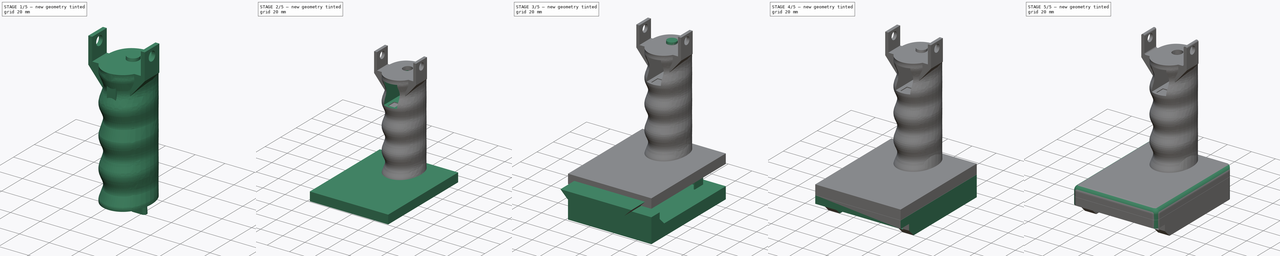
[diagram: build sequence overview — one tinted view per stage of 5, left to right]
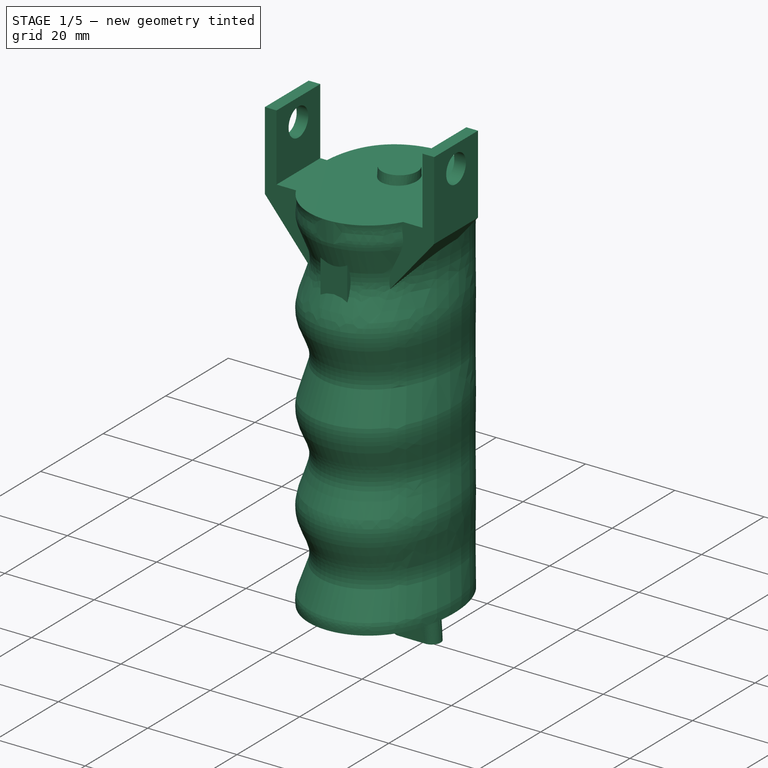
[diagram: stage 1 of 5 — iso view after this stage's code; geometry added in this stage tinted green]
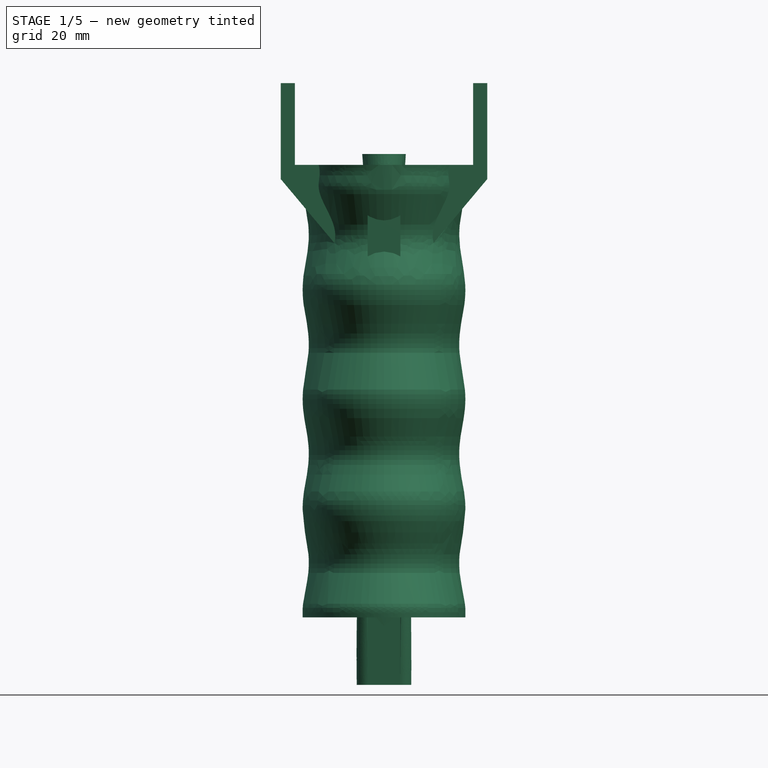
[diagram: stage 1 of 5 — front view after this stage's code; geometry added in this stage tinted green]
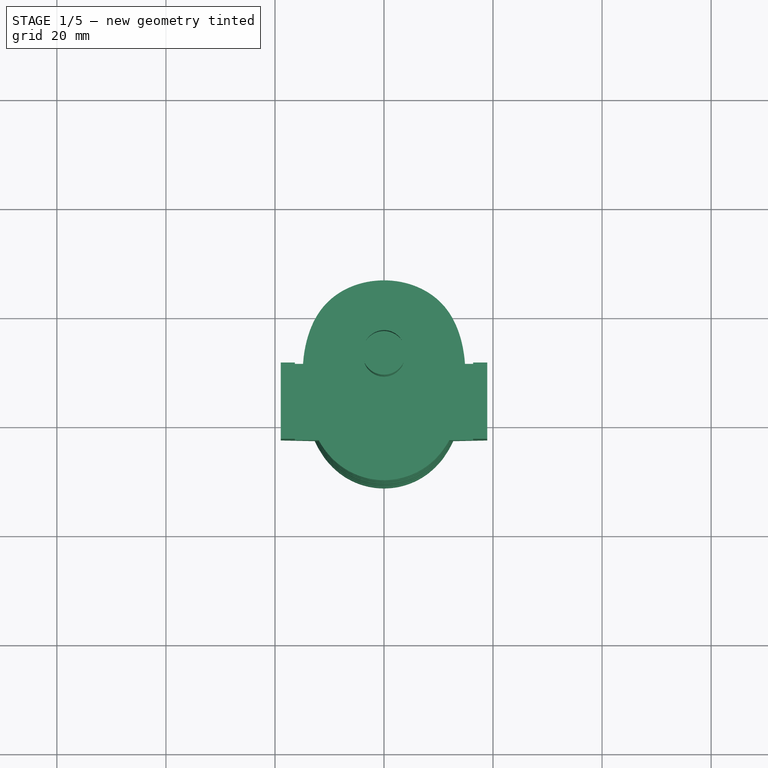
[diagram: stage 1 of 5 — top view after this stage's code; geometry added in this stage tinted green]
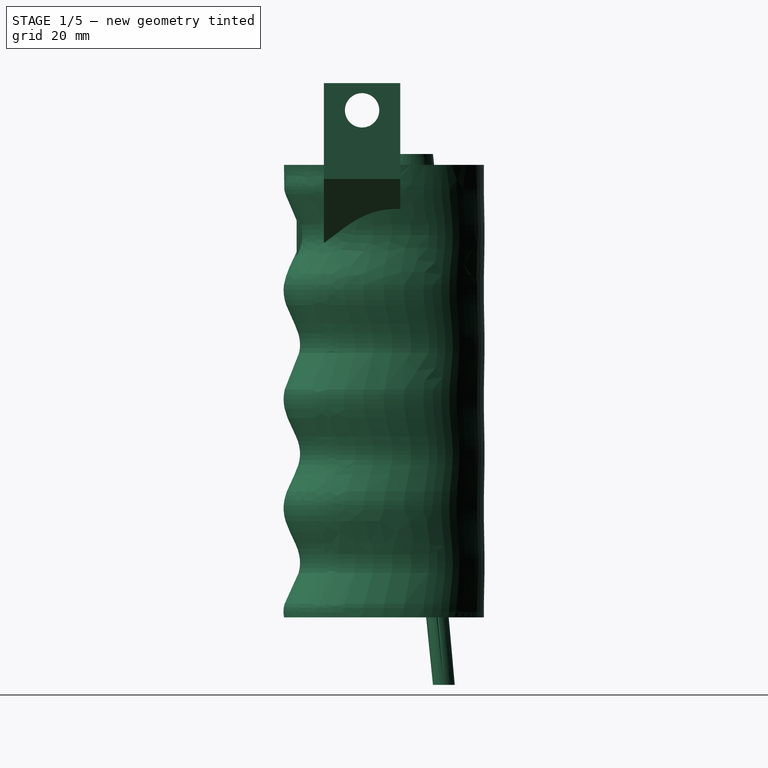
[diagram: stage 1 of 5 — right view after this stage's code; geometry added in this stage tinted green]
FCSTD DOCUMENT  (FreeCAD 0.20R29603 (Git))
Label: batteryLamp
License: All rights reserved
LicenseURL: http://en.wikipedia.org/wiki/All_rights_reserved
objects: Sketcher::SketchObject×27, Part::Cut×8, PartDesign::Body×7, Part::Box×6, PartDesign::Pad×5, Part::MultiFuse×4, Part::Fillet×4, PartDesign::AdditiveLoft×3, Part::Chamfer×1, Part::Fuse×1, Part::Cylinder×1
note: 75 computed .brp shape members not serialized (recipe doc carries the construction recipe); baked Part::Feature solids carry a one-line shape summary decoded from their .brp

FEATURE [PartDesign::AdditiveLoft] AdditiveLoft002
  Closed = false
  Placement = pos=(0,0,12.6) rot=(0,0,1;0rad)
  Profile = -> Sketch010
  Ruled = false
  Sections = -> [Sketch032,Sketch033,Sketch012]
FEATURE [Sketcher::SketchObject] Sketch036
  FullyConstrained = true
  MapMode = 5
  Placement = pos=(0,0,0) rot=(1,0,0;1.5708rad)
  Support = -> [XZ_Plane009]
  sketch-geometry (10):
    g0: LineSegment StartX=16.35 StartY=123 StartZ=0 EndX=18.95 EndY=123 EndZ=0
    g1: LineSegment StartX=18.95 StartY=123 StartZ=0 EndX=18.95 EndY=105.4 EndZ=0
    g2: LineSegment StartX=-18.95 StartY=105.4 StartZ=0 EndX=-18.95 EndY=123 EndZ=0
    g3: LineSegment StartX=-18.95 StartY=123 StartZ=0 EndX=-16.35 EndY=123 EndZ=0
    g4: LineSegment StartX=-16.35 StartY=123 StartZ=0 EndX=-16.35 EndY=108 EndZ=0
    g5: LineSegment StartX=-16.35 StartY=108 StartZ=0 EndX=0 EndY=108 EndZ=0
    g6: LineSegment StartX=0 StartY=108 StartZ=0 EndX=16.35 EndY=108 EndZ=0
    g7: LineSegment StartX=16.35 StartY=108 StartZ=0 EndX=16.35 EndY=123 EndZ=0
    g8: LineSegment StartX=-18.95 StartY=105.4 StartZ=0 EndX=0 EndY=82.8163 EndZ=0
    g9: LineSegment StartX=0 StartY=82.8163 StartZ=0 EndX=18.95 EndY=105.4 EndZ=0
  constraints (29):
    c: Coincident(g0,g1)
    c: Vertical(g1)
    c: Vertical(g2)
    c: Coincident(g2,g3)
    c: Horizontal(g3)
    c: Coincident(g3,g4)
    c: Coincident(g4,g5)
    c: PointOnObject(g5,g-2)
    c: Coincident(g5,g6)
    c: Horizontal(g6)
    c: Coincident(g6,g7)
    c: Coincident(g7,g0)
    c: Vertical(g7)
    c: Vertical(g4)
    c: Horizontal(g0)
    c: Symmetric(g4,g6,g5)
    c: DistanceX(g5,g5) = 16.35
    c: Equal(g3,g0)
    c: DistanceX(g3,g3) = 2.6
    c: DistanceY(g4,g4) = 15
    c: Equal(g4,g7)
    c: DistanceY(g-1,g5) = 108
    c: Coincident(g2,g8)
    c: Coincident(g8,g9)
    c: Coincident(g9,g1)
    c: Horizontal(g2,g1)
    c: Angle(g8,g2) = 2.44346
    c: Angle(g1,g9) = 2.44346
    c: DistanceY(g2,g4) = 2.6
FEATURE [PartDesign::Pad] Pad006
  Direction = (0,-1,-2e-16)
  Length = 14
  Length2 = 10
  Placement = pos=(0,0,0) rot=(1,0,0;1.5708rad)
  Profile = -> Sketch036
  ReferenceAxis = -> Sketch036 [N_Axis]
  Type = 0
FEATURE [PartDesign::Body] Body009
  Group = -> [Sketch036,Pad006]
  Origin = -> Origin009
  Placement = pos=(0,10,0) rot=(0,0,1;0rad)
  Tip = -> Pad006
FEATURE [Part::Cylinder] Cylinder001
  Angle = 360
  AttacherType = Attacher::AttachEngine3D
  FirstAngle = 0
  Height = 40
  Placement = pos=(-20,3,118) rot=(0,1,0;1.5708rad)
  Radius = 3.15
  SecondAngle = 0
FEATURE [Part::Cut] Cut007
  Base = -> Body009
  Tool = -> Cylinder001
FEATURE [Sketcher::SketchObject] Sketch015
  FullyConstrained = true
  Placement = pos=(0,0,37) rot=(0,0,1;0rad)
  sketch-geometry (10):
    g0-g3: Circle x4 (B-spline internal-alignment scaffolding for g4; pole/knot coordinates omitted)
    g4: BSplineCurve PolesCount=4 KnotsCount=5 Degree=3 IsPeriodic=1
    g5-g9: GeomPoint x5 (B-spline internal-alignment scaffolding for g4; pole/knot coordinates omitted)
  constraints (14):
    c: Weight(g0) = 1
    c: Equal(g0,g1)
    c: Equal(g0,g2)
    c: Equal(g0,g3)
    c: InternalAlignment(g0-g3 -> g4) x4
    c: InternalAlignment(g5-g9 -> g4) x5
    c: Horizontal(g0,g1)
    c: Horizontal(g3,g2)
    c: DistanceY(g-1,g0) = 15
    c: DistanceY(g3,g-1) = 25
    c: DistanceX(g3,g2) = 30
    c: DistanceX(g0,g1) = 35
    c: DistanceX(g-1,g1) = 17.5
    c: DistanceX(g-1,g2) = 15
FEATURE [Sketcher::SketchObject] Sketch017
  FullyConstrained = true
  Placement = pos=(0,0,57) rot=(0,0,1;0rad)
  sketch-geometry (10):
    g0-g3: Circle x4 (B-spline internal-alignment scaffolding for g4; pole/knot coordinates omitted)
    g4: BSplineCurve PolesCount=4 KnotsCount=5 Degree=3 IsPeriodic=1
    g5-g9: GeomPoint x5 (B-spline internal-alignment scaffolding for g4; pole/knot coordinates omitted)
  constraints (14):
    c: Weight(g0) = 1
    c: Equal(g0,g1)
    c: Equal(g0,g2)
    c: Equal(g0,g3)
    c: InternalAlignment(g0-g3 -> g4) x4
    c: InternalAlignment(g5-g9 -> g4) x5
    c: Horizontal(g0,g1)
    c: Horizontal(g3,g2)
    c: DistanceY(g-1,g0) = 15
    c: DistanceY(g3,g-1) = 25
    c: DistanceX(g3,g2) = 30
    c: DistanceX(g0,g1) = 35
    c: DistanceX(g-1,g1) = 17.5
    c: DistanceX(g-1,g2) = 15
FEATURE [Sketcher::SketchObject] Sketch018
  FullyConstrained = true
  Placement = pos=(0,0,77) rot=(0,0,1;0rad)
  sketch-geometry (10):
    g0-g3: Circle x4 (B-spline internal-alignment scaffolding for g4; pole/knot coordinates omitted)
    g4: BSplineCurve PolesCount=4 KnotsCount=5 Degree=3 IsPeriodic=1
    g5-g9: GeomPoint x5 (B-spline internal-alignment scaffolding for g4; pole/knot coordinates omitted)
  constraints (14):
    c: Weight(g0) = 1
    c: Equal(g0,g1)
    c: Equal(g0,g2)
    c: Equal(g0,g3)
    c: InternalAlignment(g0-g3 -> g4) x4
    c: InternalAlignment(g5-g9 -> g4) x5
    c: Horizontal(g0,g1)
    c: Horizontal(g3,g2)
    c: DistanceY(g-1,g0) = 15
    c: DistanceY(g3,g-1) = 25
    c: DistanceX(g3,g2) = 30
    c: DistanceX(g0,g1) = 35
    c: DistanceX(g-1,g1) = 17.5
    c: DistanceX(g-1,g2) = 15
FEATURE [Sketcher::SketchObject] Sketch019
  FullyConstrained = true
  Placement = pos=(0,0,97) rot=(0,0,1;0rad)
  sketch-geometry (10):
    g0-g3: Circle x4 (B-spline internal-alignment scaffolding for g4; pole/knot coordinates omitted)
    g4: BSplineCurve PolesCount=4 KnotsCount=5 Degree=3 IsPeriodic=1
    g5-g9: GeomPoint x5 (B-spline internal-alignment scaffolding for g4; pole/knot coordinates omitted)
  constraints (14):
    c: Weight(g0) = 1
    c: Equal(g0,g1)
    c: Equal(g0,g2)
    c: Equal(g0,g3)
    c: InternalAlignment(g0-g3 -> g4) x4
    c: InternalAlignment(g5-g9 -> g4) x5
    c: Horizontal(g0,g1)
    c: Horizontal(g3,g2)
    c: DistanceY(g-1,g0) = 15
    c: DistanceY(g3,g-1) = 25
    c: DistanceX(g3,g2) = 30
    c: DistanceX(g0,g1) = 35
    c: DistanceX(g-1,g1) = 17.5
    c: DistanceX(g-1,g2) = 15
FEATURE [Sketcher::SketchObject] Sketch020  label="small"
  FullyConstrained = true
  Placement = pos=(0,0,47) rot=(0,0,1;0rad)
  sketch-geometry (10):
    g0-g3: Circle x4 (B-spline internal-alignment scaffolding for g4; pole/knot coordinates omitted)
    g4: BSplineCurve PolesCount=4 KnotsCount=5 Degree=3 IsPeriodic=1
    g5-g9: GeomPoint x5 (B-spline internal-alignment scaffolding for g4; pole/knot coordinates omitted)
  constraints (14):
    c: Weight(g0) = 1
    c: Equal(g0,g1)
    c: Equal(g0,g2)
    c: Equal(g0,g3)
    c: InternalAlignment(g0-g3 -> g4) x4
    c: InternalAlignment(g5-g9 -> g4) x5
    c: Horizontal(g0,g1)
    c: Horizontal(g3,g2)
    c: DistanceY(g-1,g0) = 15
    c: DistanceY(g3,g-1) = 22
    c: DistanceX(g3,g2) = 25
    c: DistanceX(g0,g1) = 35
    c: DistanceX(g-1,g1) = 17.5
    c: DistanceX(g-1,g2) = 12.5
FEATURE [Sketcher::SketchObject] Sketch021  label="small001"
  FullyConstrained = true
  Placement = pos=(0,0,67) rot=(0,0,1;0rad)
  sketch-geometry (10):
    g0-g3: Circle x4 (B-spline internal-alignment scaffolding for g4; pole/knot coordinates omitted)
    g4: BSplineCurve PolesCount=4 KnotsCount=5 Degree=3 IsPeriodic=1
    g5-g9: GeomPoint x5 (B-spline internal-alignment scaffolding for g4; pole/knot coordinates omitted)
  constraints (14):
    c: Weight(g0) = 1
    c: Equal(g0,g1)
    c: Equal(g0,g2)
    c: Equal(g0,g3)
    c: InternalAlignment(g0-g3 -> g4) x4
    c: InternalAlignment(g5-g9 -> g4) x5
    c: Horizontal(g0,g1)
    c: Horizontal(g3,g2)
    c: DistanceY(g-1,g0) = 15
    c: DistanceY(g3,g-1) = 22
    c: DistanceX(g3,g2) = 25
    c: DistanceX(g0,g1) = 35
    c: DistanceX(g-1,g1) = 17.5
    c: DistanceX(g-1,g2) = 12.5
FEATURE [Sketcher::SketchObject] Sketch022  label="small002"
  FullyConstrained = true
  Placement = pos=(0,0,87) rot=(0,0,1;0rad)
  sketch-geometry (10):
    g0-g3: Circle x4 (B-spline internal-alignment scaffolding for g4; pole/knot coordinates omitted)
    g4: BSplineCurve PolesCount=4 KnotsCount=5 Degree=3 IsPeriodic=1
    g5-g9: GeomPoint x5 (B-spline internal-alignment scaffolding for g4; pole/knot coordinates omitted)
  constraints (14):
    c: Weight(g0) = 1
    c: Equal(g0,g1)
    c: Equal(g0,g2)
    c: Equal(g0,g3)
    c: InternalAlignment(g0-g3 -> g4) x4
    c: InternalAlignment(g5-g9 -> g4) x5
    c: Horizontal(g0,g1)
    c: Horizontal(g3,g2)
    c: DistanceY(g-1,g0) = 15
    c: DistanceY(g3,g-1) = 22
    c: DistanceX(g3,g2) = 25
    c: DistanceX(g0,g1) = 35
    c: DistanceX(g-1,g1) = 17.5
    c: DistanceX(g-1,g2) = 12.5
FEATURE [Sketcher::SketchObject] Sketch023  label="small003"
  FullyConstrained = true
  Placement = pos=(0,0,27) rot=(0,0,1;0rad)
  sketch-geometry (10):
    g0-g3: Circle x4 (B-spline internal-alignment scaffolding for g4; pole/knot coordinates omitted)
    g4: BSplineCurve PolesCount=4 KnotsCount=5 Degree=3 IsPeriodic=1
    g5-g9: GeomPoint x5 (B-spline internal-alignment scaffolding for g4; pole/knot coordinates omitted)
  constraints (14):
    c: Weight(g0) = 1
    c: Equal(g0,g1)
    c: Equal(g0,g2)
    c: Equal(g0,g3)
    c: InternalAlignment(g0-g3 -> g4) x4
    c: InternalAlignment(g5-g9 -> g4) x5
    c: Horizontal(g0,g1)
    c: Horizontal(g3,g2)
    c: DistanceY(g-1,g0) = 15
    c: DistanceY(g3,g-1) = 22
    c: DistanceX(g3,g2) = 25
    c: DistanceX(g0,g1) = 35
    c: DistanceX(g-1,g1) = 17.5
    c: DistanceX(g-1,g2) = 12.5
FEATURE [Sketcher::SketchObject] Sketch024
  FullyConstrained = true
  Placement = pos=(0,0,39.03) rot=(0,0,1;0rad)
  sketch-geometry (10):
    g0-g3: Circle x4 (B-spline internal-alignment scaffolding for g4; pole/knot coordinates omitted)
    g4: BSplineCurve PolesCount=4 KnotsCount=5 Degree=3 IsPeriodic=1
    g5-g9: GeomPoint x5 (B-spline internal-alignment scaffolding for g4; pole/knot coordinates omitted)
  constraints (14):
    c: Weight(g0) = 1
    c: Equal(g0,g1)
    c: Equal(g0,g2)
    c: Equal(g0,g3)
    c: InternalAlignment(g0-g3 -> g4) x4
    c: InternalAlignment(g5-g9 -> g4) x5
    c: Horizontal(g0,g1)
    c: Horizontal(g3,g2)
    c: DistanceY(g-1,g0) = 15
    c: DistanceY(g3,g-1) = 25
    c: DistanceX(g3,g2) = 30
    c: DistanceX(g0,g1) = 35
    c: DistanceX(g-1,g1) = 17.5
    c: DistanceX(g-1,g2) = 15
FEATURE [Sketcher::SketchObject] Sketch025
  FullyConstrained = true
  Placement = pos=(0,0,59.03) rot=(0,0,1;0rad)
  sketch-geometry (10):
    g0-g3: Circle x4 (B-spline internal-alignment scaffolding for g4; pole/knot coordinates omitted)
    g4: BSplineCurve PolesCount=4 KnotsCount=5 Degree=3 IsPeriodic=1
    g5-g9: GeomPoint x5 (B-spline internal-alignment scaffolding for g4; pole/knot coordinates omitted)
  constraints (14):
    c: Weight(g0) = 1
    c: Equal(g0,g1)
    c: Equal(g0,g2)
    c: Equal(g0,g3)
    c: InternalAlignment(g0-g3 -> g4) x4
    c: InternalAlignment(g5-g9 -> g4) x5
    c: Horizontal(g0,g1)
    c: Horizontal(g3,g2)
    c: DistanceY(g-1,g0) = 15
    c: DistanceY(g3,g-1) = 25
    c: DistanceX(g3,g2) = 30
    c: DistanceX(g0,g1) = 35
    c: DistanceX(g-1,g1) = 17.5
    c: DistanceX(g-1,g2) = 15
FEATURE [Sketcher::SketchObject] Sketch026
  FullyConstrained = true
  Placement = pos=(0,0,79.03) rot=(0,0,1;0rad)
  sketch-geometry (10):
    g0-g3: Circle x4 (B-spline internal-alignment scaffolding for g4; pole/knot coordinates omitted)
    g4: BSplineCurve PolesCount=4 KnotsCount=5 Degree=3 IsPeriodic=1
    g5-g9: GeomPoint x5 (B-spline internal-alignment scaffolding for g4; pole/knot coordinates omitted)
  constraints (14):
    c: Weight(g0) = 1
    c: Equal(g0,g1)
    c: Equal(g0,g2)
    c: Equal(g0,g3)
    c: InternalAlignment(g0-g3 -> g4) x4
    c: InternalAlignment(g5-g9 -> g4) x5
    c: Horizontal(g0,g1)
    c: Horizontal(g3,g2)
    c: DistanceY(g-1,g0) = 15
    c: DistanceY(g3,g-1) = 25
    c: DistanceX(g3,g2) = 30
    c: DistanceX(g0,g1) = 35
    c: DistanceX(g-1,g1) = 17.5
    c: DistanceX(g-1,g2) = 15
FEATURE [Sketcher::SketchObject] Sketch027
  FullyConstrained = true
  Placement = pos=(0,0,101) rot=(0,0,1;0rad)
  sketch-geometry (10):
    g0-g3: Circle x4 (B-spline internal-alignment scaffolding for g4; pole/knot coordinates omitted)
    g4: BSplineCurve PolesCount=4 KnotsCount=5 Degree=3 IsPeriodic=1
    g5-g9: GeomPoint x5 (B-spline internal-alignment scaffolding for g4; pole/knot coordinates omitted)
  constraints (14):
    c: Weight(g0) = 1
    c: Equal(g0,g1)
    c: Equal(g0,g2)
    c: Equal(g0,g3)
    c: InternalAlignment(g0-g3 -> g4) x4
    c: InternalAlignment(g5-g9 -> g4) x5
    c: Horizontal(g0,g1)
    c: Horizontal(g3,g2)
    c: DistanceY(g-1,g0) = 15
    c: DistanceY(g3,g-1) = 25
    c: DistanceX(g3,g2) = 30
    c: DistanceX(g0,g1) = 35
    c: DistanceX(g-1,g1) = 17.5
    c: DistanceX(g-1,g2) = 15
FEATURE [Sketcher::SketchObject] Sketch028  label="small004"
  FullyConstrained = true
  Placement = pos=(0,0,49.03) rot=(0,0,1;0rad)
  sketch-geometry (10):
    g0-g3: Circle x4 (B-spline internal-alignment scaffolding for g4; pole/knot coordinates omitted)
    g4: BSplineCurve PolesCount=4 KnotsCount=5 Degree=3 IsPeriodic=1
    g5-g9: GeomPoint x5 (B-spline internal-alignment scaffolding for g4; pole/knot coordinates omitted)
  constraints (14):
    c: Weight(g0) = 1
    c: Equal(g0,g1)
    c: Equal(g0,g2)
    c: Equal(g0,g3)
    c: InternalAlignment(g0-g3 -> g4) x4
    c: InternalAlignment(g5-g9 -> g4) x5
    c: Horizontal(g0,g1)
    c: Horizontal(g3,g2)
    c: DistanceY(g-1,g0) = 15
    c: DistanceY(g3,g-1) = 22
    c: DistanceX(g3,g2) = 25
    c: DistanceX(g0,g1) = 35
    c: DistanceX(g-1,g1) = 17.5
    c: DistanceX(g-1,g2) = 12.5
FEATURE [Sketcher::SketchObject] Sketch029  label="small005"
  FullyConstrained = true
  Placement = pos=(0,0,69.03) rot=(0,0,1;0rad)
  sketch-geometry (10):
    g0-g3: Circle x4 (B-spline internal-alignment scaffolding for g4; pole/knot coordinates omitted)
    g4: BSplineCurve PolesCount=4 KnotsCount=5 Degree=3 IsPeriodic=1
    g5-g9: GeomPoint x5 (B-spline internal-alignment scaffolding for g4; pole/knot coordinates omitted)
  constraints (14):
    c: Weight(g0) = 1
    c: Equal(g0,g1)
    c: Equal(g0,g2)
    c: Equal(g0,g3)
    c: InternalAlignment(g0-g3 -> g4) x4
    c: InternalAlignment(g5-g9 -> g4) x5
    c: Horizontal(g0,g1)
    c: Horizontal(g3,g2)
    c: DistanceY(g-1,g0) = 15
    c: DistanceY(g3,g-1) = 22
    c: DistanceX(g3,g2) = 25
    c: DistanceX(g0,g1) = 35
    c: DistanceX(g-1,g1) = 17.5
    c: DistanceX(g-1,g2) = 12.5
FEATURE [Sketcher::SketchObject] Sketch030  label="small006"
  FullyConstrained = true
  Placement = pos=(0,0,29.03) rot=(0,0,1;0rad)
  sketch-geometry (10):
    g0-g3: Circle x4 (B-spline internal-alignment scaffolding for g4; pole/knot coordinates omitted)
    g4: BSplineCurve PolesCount=4 KnotsCount=5 Degree=3 IsPeriodic=1
    g5-g9: GeomPoint x5 (B-spline internal-alignment scaffolding for g4; pole/knot coordinates omitted)
  constraints (14):
    c: Weight(g0) = 1
    c: Equal(g0,g1)
    c: Equal(g0,g2)
    c: Equal(g0,g3)
    c: InternalAlignment(g0-g3 -> g4) x4
    c: InternalAlignment(g5-g9 -> g4) x5
    c: Horizontal(g0,g1)
    c: Horizontal(g3,g2)
    c: DistanceY(g-1,g0) = 15
    c: DistanceY(g3,g-1) = 22
    c: DistanceX(g3,g2) = 25
    c: DistanceX(g0,g1) = 35
    c: DistanceX(g-1,g1) = 17.5
    c: DistanceX(g-1,g2) = 12.5
FEATURE [Sketcher::SketchObject] Sketch031  label="small007"
  FullyConstrained = true
  Placement = pos=(0,0,89.03) rot=(0,0,1;0rad)
  sketch-geometry (10):
    g0-g3: Circle x4 (B-spline internal-alignment scaffolding for g4; pole/knot coordinates omitted)
    g4: BSplineCurve PolesCount=4 KnotsCount=5 Degree=3 IsPeriodic=1
    g5-g9: GeomPoint x5 (B-spline internal-alignment scaffolding for g4; pole/knot coordinates omitted)
  constraints (14):
    c: Weight(g0) = 1
    c: Equal(g0,g1)
    c: Equal(g0,g2)
    c: Equal(g0,g3)
    c: InternalAlignment(g0-g3 -> g4) x4
    c: InternalAlignment(g5-g9 -> g4) x5
    c: Horizontal(g0,g1)
    c: Horizontal(g3,g2)
    c: DistanceY(g-1,g0) = 15
    c: DistanceY(g3,g-1) = 22
    c: DistanceX(g3,g2) = 25
    c: DistanceX(g0,g1) = 35
    c: DistanceX(g-1,g1) = 17.5
    c: DistanceX(g-1,g2) = 12.5
FEATURE [Sketcher::SketchObject] Sketch034
  FullyConstrained = true
  Placement = pos=(0,0,20) rot=(0,0,1;0rad)
  sketch-geometry (10):
    g0-g3: Circle x4 (B-spline internal-alignment scaffolding for g4; pole/knot coordinates omitted)
    g4: BSplineCurve PolesCount=4 KnotsCount=5 Degree=3 IsPeriodic=1
    g5-g9: GeomPoint x5 (B-spline internal-alignment scaffolding for g4; pole/knot coordinates omitted)
  constraints (14):
    c: Weight(g0) = 1
    c: Equal(g0,g1)
    c: Equal(g0,g2)
    c: Equal(g0,g3)
    c: InternalAlignment(g0-g3 -> g4) x4
    c: InternalAlignment(g5-g9 -> g4) x5
    c: Horizontal(g0,g1)
    c: Horizontal(g3,g2)
    c: DistanceY(g-1,g0) = 15
    c: DistanceY(g3,g-1) = 25
    c: DistanceX(g3,g2) = 30
    c: DistanceX(g0,g1) = 35
    c: DistanceX(g-1,g1) = 17.5
    c: DistanceX(g-1,g2) = 15
FEATURE [Sketcher::SketchObject] Sketch035
  FullyConstrained = true
  Placement = pos=(0,0,18) rot=(0,0,1;0rad)
  sketch-geometry (10):
    g0-g3: Circle x4 (B-spline internal-alignment scaffolding for g4; pole/knot coordinates omitted)
    g4: BSplineCurve PolesCount=4 KnotsCount=5 Degree=3 IsPeriodic=1
    g5-g9: GeomPoint x5 (B-spline internal-alignment scaffolding for g4; pole/knot coordinates omitted)
  constraints (14):
    c: Weight(g0) = 1
    c: Equal(g0,g1)
    c: Equal(g0,g2)
    c: Equal(g0,g3)
    c: InternalAlignment(g0-g3 -> g4) x4
    c: InternalAlignment(g5-g9 -> g4) x5
    c: Horizontal(g0,g1)
    c: Horizontal(g3,g2)
    c: DistanceY(g-1,g0) = 15
    c: DistanceY(g3,g-1) = 25
    c: DistanceX(g3,g2) = 30
    c: DistanceX(g0,g1) = 35
    c: DistanceX(g-1,g1) = 17.5
    c: DistanceX(g-1,g2) = 15
FEATURE [PartDesign::AdditiveLoft] AdditiveLoft003
  Closed = false
  Placement = pos=(0,0,18) rot=(0,0,1;0rad)
  Profile = -> Sketch035
  Ruled = false
  Sections = -> [Sketch034,Sketch023,Sketch030,Sketch015,Sketch024,Sketch020,Sketch028,Sketch017,Sketch025,Sketch021,Sketch029,Sketch018,Sketch026,Sketch022,Sketch031,Sketch019,Sketch027]
FEATURE [PartDesign::Body] Body007
  Group = -> [Sketch015,Sketch017,Sketch018,Sketch019,Sketch020,Sketch021,Sketch022,Sketch023,Sketch024,Sketch025,Sketch026,Sketch027,Sketch028,Sketch029,Sketch030,Sketch031,Sketch034,Sketch035,AdditiveLoft003]
  Origin = -> Origin007
  Placement = pos=(0,12,7) rot=(0,0,1;0rad)
  Tip = -> AdditiveLoft003
FEATURE [Part::MultiFuse] Fusion004
  Shapes = -> [Body007,Cut007]
FEATURE [Part::Box] Box007  label="Cube001"
  AttacherType = Attacher::AttachEngine3D
  Height = 20.8
  Length = 6
  Placement = pos=(-3,-9,84.3) rot=(0,0,1;0rad)
  Width = 8
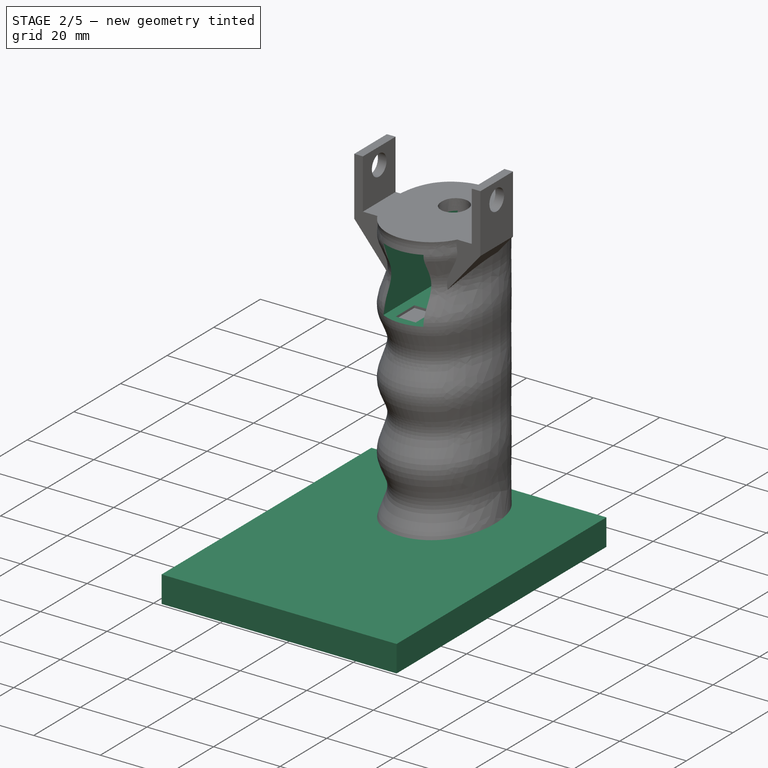
[diagram: stage 2 of 5 — iso view after this stage's code; geometry added in this stage tinted green]
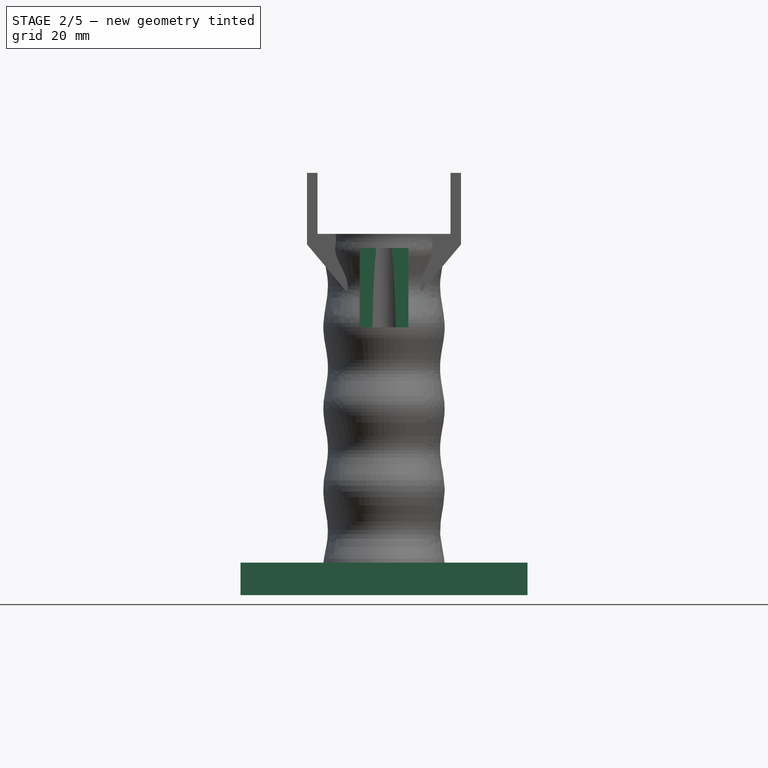
[diagram: stage 2 of 5 — front view after this stage's code; geometry added in this stage tinted green]
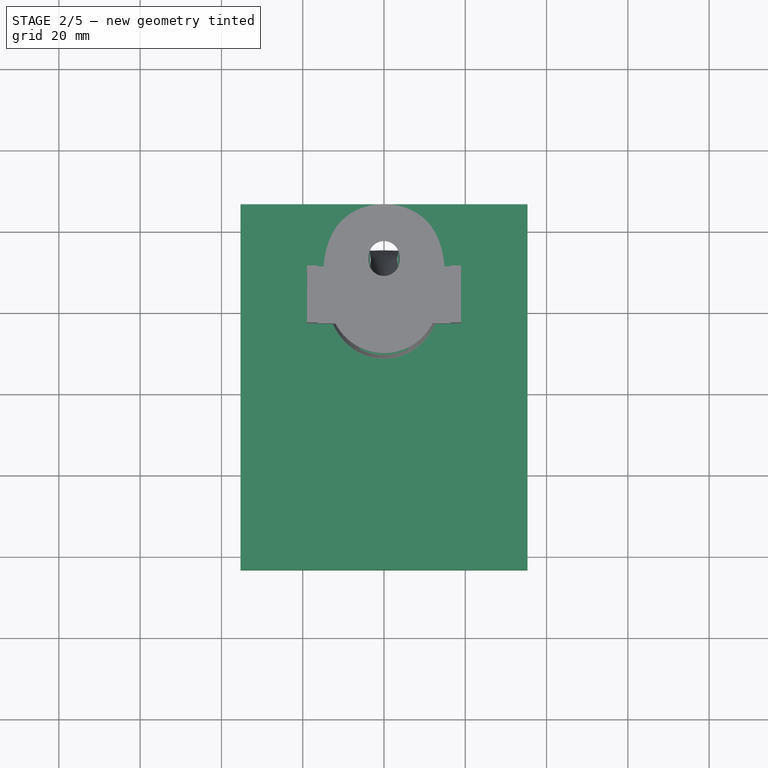
[diagram: stage 2 of 5 — top view after this stage's code; geometry added in this stage tinted green]
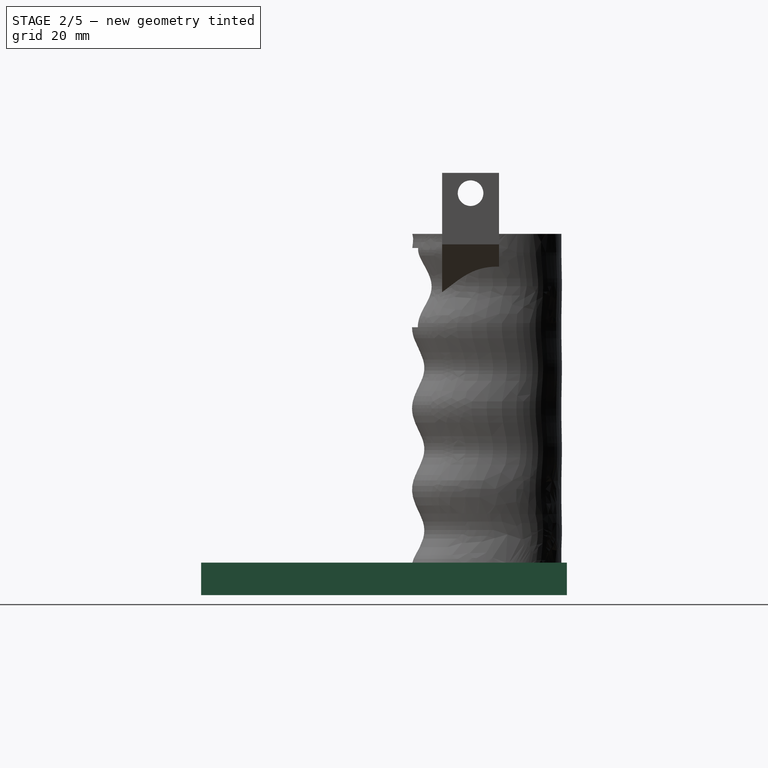
[diagram: stage 2 of 5 — right view after this stage's code; geometry added in this stage tinted green]
FEATURE [Sketcher::SketchObject] Sketch010
  FullyConstrained = true
  Placement = pos=(0,0,12.6) rot=(0,0,1;0rad)
  sketch-geometry (4):
    g0: ArcOfCircle CenterX=-3 CenterY=18 CenterZ=0 NormalX=0 NormalY=0 NormalZ=1 AngleXU=0 Radius=2 StartAngle=1.5708 EndAngle=4.71239
    g1: ArcOfCircle CenterX=3 CenterY=18 CenterZ=0 NormalX=0 NormalY=0 NormalZ=1 AngleXU=0 Radius=2 StartAngle=4.71239 EndAngle=7.85398
    g2: LineSegment StartX=-3 StartY=16 StartZ=0 EndX=3 EndY=16 EndZ=0
    g3: LineSegment StartX=3 StartY=20 StartZ=0 EndX=-3 EndY=20 EndZ=0
  constraints (10):
    c: Tangent(g0,g2) = -1.5708
    c: Tangent(g2,g1) = -1.5708
    c: Tangent(g1,g3) = -1.5708
    c: Tangent(g3,g0) = -1.5708
    c: Equal(g0,g1)
    c: DistanceY(g-1,g0) = 18
    c: DistanceY(g0,g0) = 2
    c: Horizontal(g0,g1)
    c: DistanceX(g0,g1) = 6
    c: DistanceX(g-1,g1) = 3
FEATURE [Sketcher::SketchObject] Sketch012
  FullyConstrained = true
  Placement = pos=(0,-6,110) rot=(0,0,1;0rad)
  sketch-geometry (1):
    g0: Circle CenterX=0 CenterY=18 CenterZ=0 NormalX=0 NormalY=0 NormalZ=1 AngleXU=0 Radius=4
  constraints (3):
    c: PointOnObject(g0,g-2)
    c: Radius(g0) = 4
    c: DistanceY(g-1,g0) = 18
FEATURE [Part::Box] Box005  label="Cube"
  AttacherType = Attacher::AttachEngine3D
  Height = 8
  Length = 70.6
  Placement = pos=(-35.3,-63.3,19.1) rot=(0,0,1;0rad)
  Width = 90
FEATURE [Part::Box] Box006  label="spust"
  AttacherType = Attacher::AttachEngine3D
  Height = 19.5
  Length = 12
  Placement = pos=(-6,-12,85) rot=(0,0,1;0rad)
  Width = 28
FEATURE [Part::MultiFuse] Fusion003
  Shapes = -> [Body007,Box005,Fusion004]
FEATURE [Part::Cut] Cut003
  Base = -> Fusion003
  Tool = -> AdditiveLoft002
FEATURE [Part::Cut] Cut004
  Base = -> Cut003
  Tool = -> Box006
FEATURE [Part::Cut] Cut008
  Base = -> Cut004
  Tool = -> Box007
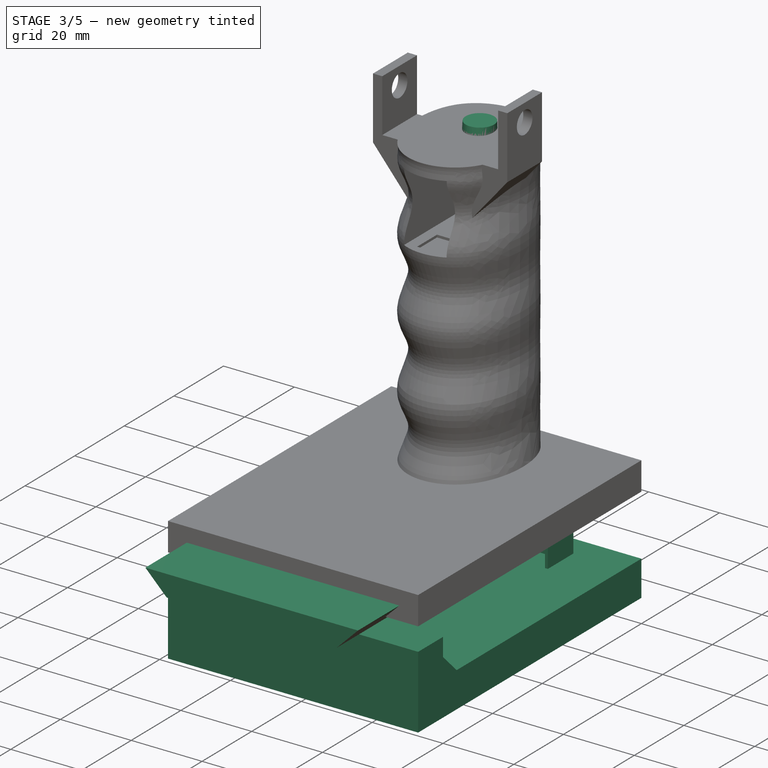
[diagram: stage 3 of 5 — iso view after this stage's code; geometry added in this stage tinted green]
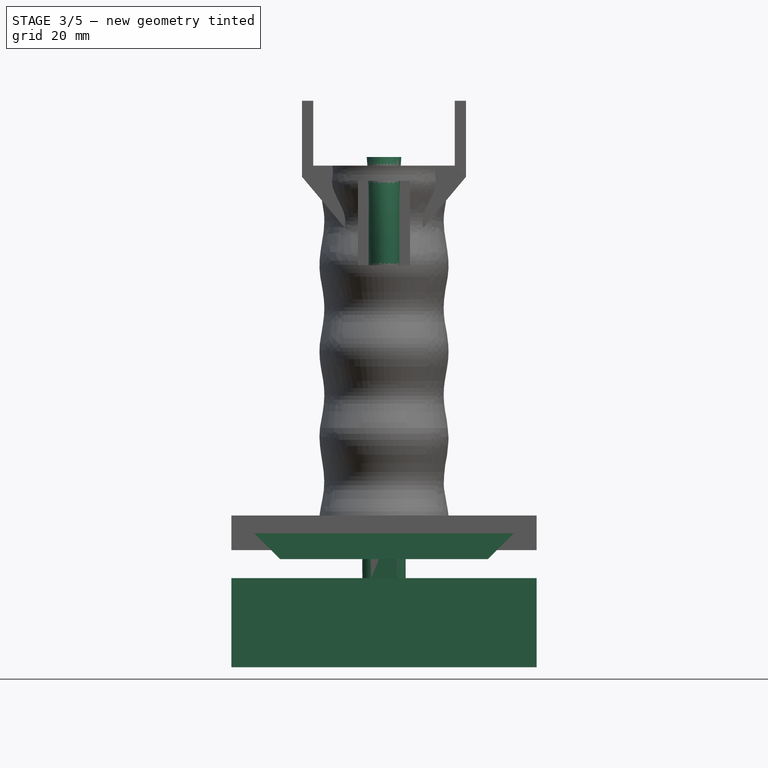
[diagram: stage 3 of 5 — front view after this stage's code; geometry added in this stage tinted green]
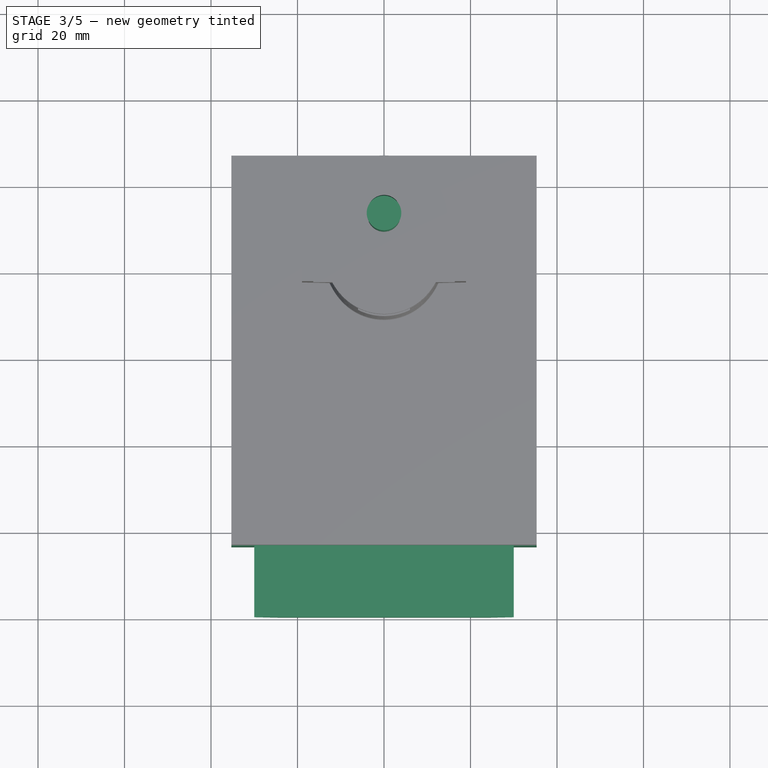
[diagram: stage 3 of 5 — top view after this stage's code; geometry added in this stage tinted green]
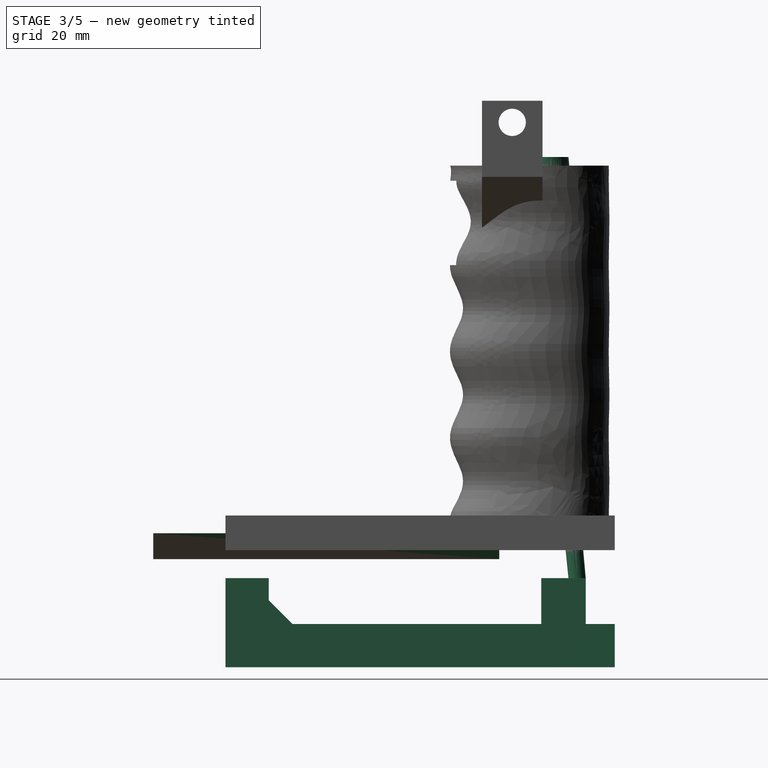
[diagram: stage 3 of 5 — right view after this stage's code; geometry added in this stage tinted green]
FEATURE [PartDesign::Body] Body001
  Group = -> [Sketch001,Pad001]
  Origin = -> Origin001
  Placement = pos=(-11.1,-7.6,1.1) rot=(0,0,1;0rad)
  Tip = -> Pad001
FEATURE [Part::Box] Box003  label="back"
  AttacherType = Attacher::AttachEngine3D
  Height = 10.6
  Length = 70.6
  Placement = pos=(-35.3,-63.3,2) rot=(0,0,1;0rad)
  Width = 10
FEATURE [Part::Box] Box004  label="bottom"
  AttacherType = Attacher::AttachEngine3D
  Height = 10
  Length = 70.6
  Placement = pos=(-35.3,-63.3,-8) rot=(0,0,1;0rad)
  Width = 90
FEATURE [Part::MultiFuse] Fusion
  Shapes = -> [Box004,Box003]
FEATURE [Part::Chamfer] Chamfer
  Base = -> Fusion
  Edges = 1 edges r=5.5: [Edge14]
FEATURE [Sketcher::SketchObject] Sketch002
  FullyConstrained = true
  MapMode = 5
  Placement = pos=(0,0,0) rot=(1,0,0;1.5708rad)
  Support = -> [XZ_Plane002]
  sketch-geometry (5):
    g0: LineSegment StartX=-24 StartY=17 StartZ=0 EndX=-30 EndY=23 EndZ=0
    g1: LineSegment StartX=-30 StartY=23 StartZ=0 EndX=30 EndY=23 EndZ=0
    g2: LineSegment StartX=30 StartY=23 StartZ=0 EndX=24 EndY=17 EndZ=0
    g3: LineSegment StartX=24 StartY=17 StartZ=0 EndX=0 EndY=17 EndZ=0
    g4: LineSegment StartX=0 StartY=17 StartZ=0 EndX=-24 EndY=17 EndZ=0
  constraints (14):
    c: Coincident(g0,g1)
    c: Horizontal(g1)
    c: Coincident(g1,g2)
    c: Coincident(g2,g3)
    c: Horizontal(g3)
    c: Coincident(g3,g4)
    c: Coincident(g4,g0)
    c: Vertical(g3,g-1)
    c: Symmetric(g0,g2,g3)
    c: Equal(g0,g2)
    c: Angle(g4,g0) = 2.35619
    c: DistanceY(g-1,g3) = 17
    c: DistanceX(g0,g3) = 30
    c: DistanceY(g0,g0) = 6
FEATURE [PartDesign::Pad] Pad002
  Direction = (0,-1,-2e-16)
  Length = 80
  Length2 = 10
  Placement = pos=(0,0,0) rot=(1,0,0;1.5708rad)
  Profile = -> Sketch002
  ReferenceAxis = -> Sketch002 [N_Axis]
  Type = 0
FEATURE [Sketcher::SketchObject] Sketch009
  FullyConstrained = true
  sketch-geometry (10):
    g0: LineSegment StartX=-20.8 StartY=9.7 StartZ=0 EndX=-20.8 EndY=20 EndZ=0
    g1: LineSegment StartX=20.8 StartY=20 StartZ=0 EndX=20.8 EndY=9.7 EndZ=0
    g2: LineSegment StartX=20.8 StartY=9.7 StartZ=0 EndX=20 EndY=9.7 EndZ=0
    g3: LineSegment StartX=20 StartY=9.7 StartZ=0 EndX=20 EndY=16 EndZ=0
    g4: LineSegment StartX=20 StartY=16 StartZ=0 EndX=-20 EndY=16 EndZ=0
    g5: LineSegment StartX=-20 StartY=16 StartZ=0 EndX=-20 EndY=9.7 EndZ=0
    g6: LineSegment StartX=-20 StartY=9.7 StartZ=0 EndX=-20.8 EndY=9.7 EndZ=0
    g7: GeomPoint X=0 Y=20 Z=0
    g8: LineSegment StartX=-20.8 StartY=20 StartZ=0 EndX=0 EndY=20 EndZ=0
    g9: LineSegment StartX=20.8 StartY=20 StartZ=0 EndX=0 EndY=20 EndZ=0
  constraints (27):
    c: Vertical(g1)
    c: Coincident(g1,g2)
    c: Coincident(g2,g3)
    c: Coincident(g3,g4)
    c: Horizontal(g4)
    c: Coincident(g4,g5)
    c: Coincident(g5,g6)
    c: Coincident(g6,g0)
    c: Equal(g6,g2)
    c: Equal(g3,g5)
    c: Equal(g0,g1)
    c: DistanceX(g6,g6) = 0.8
    c: Perpendicular(g2,g3)
    c: Perpendicular(g5,g6)
    c: Parallel(g5,g0)
    c: PointOnObject(g7,g-2)
    c: Coincident(g8,g0)
    c: Coincident(g8,g7)
    c: Horizontal(g8)
    c: Coincident(g9,g1)
    c: Coincident(g9,g8)
    c: Symmetric(g0,g1,g8)
    c: Perpendicular(g8,g0)
    c: DistanceY(g-1,g5) = 9.7
    c: DistanceY(g4,g0) = 4
    c: DistanceX(g4,g3) = 40
    c: DistanceY(g-1,g8) = 20
FEATURE [PartDesign::Pad] Pad004
  Direction = (0,0,1)
  Length = 12.6
  Length2 = 10
  Profile = -> Sketch009
  ReferenceAxis = -> Sketch009 [N_Axis]
  Type = 0
FEATURE [Sketcher::SketchObject] Sketch032
  FullyConstrained = true
  Placement = pos=(0,-1,23.6) rot=(0,0,1;0rad)
  sketch-geometry (4):
    g0: ArcOfCircle CenterX=-3 CenterY=18 CenterZ=0 NormalX=0 NormalY=0 NormalZ=1 AngleXU=0 Radius=2 StartAngle=1.5708 EndAngle=4.71239
    g1: ArcOfCircle CenterX=3 CenterY=18 CenterZ=0 NormalX=0 NormalY=0 NormalZ=1 AngleXU=0 Radius=2 StartAngle=4.71239 EndAngle=7.85398
    g2: LineSegment StartX=-3 StartY=16 StartZ=0 EndX=3 EndY=16 EndZ=0
    g3: LineSegment StartX=3 StartY=20 StartZ=0 EndX=-3 EndY=20 EndZ=0
  constraints (10):
    c: Tangent(g0,g2) = -1.5708
    c: Tangent(g2,g1) = -1.5708
    c: Tangent(g1,g3) = -1.5708
    c: Tangent(g3,g0) = -1.5708
    c: Equal(g0,g1)
    c: DistanceY(g-1,g0) = 18
    c: DistanceY(g0,g0) = 2
    c: Horizontal(g0,g1)
    c: DistanceX(g0,g1) = 6
    c: DistanceX(g-1,g1) = 3
FEATURE [Sketcher::SketchObject] Sketch033
  FullyConstrained = true
  Placement = pos=(0,-4,55) rot=(0,0,1;0rad)
  sketch-geometry (1):
    g0: Circle CenterX=0 CenterY=18 CenterZ=0 NormalX=0 NormalY=0 NormalZ=1 AngleXU=0 Radius=4
  constraints (3):
    c: PointOnObject(g0,g-2)
    c: Radius(g0) = 4
    c: DistanceY(g-1,g0) = 18
FEATURE [PartDesign::AdditiveLoft] AdditiveLoft
  Closed = false
  Placement = pos=(0,0,12.6) rot=(0,0,1;0rad)
  Profile = -> Sketch010
  Ruled = false
  Sections = -> [Sketch032,Sketch033,Sketch012]
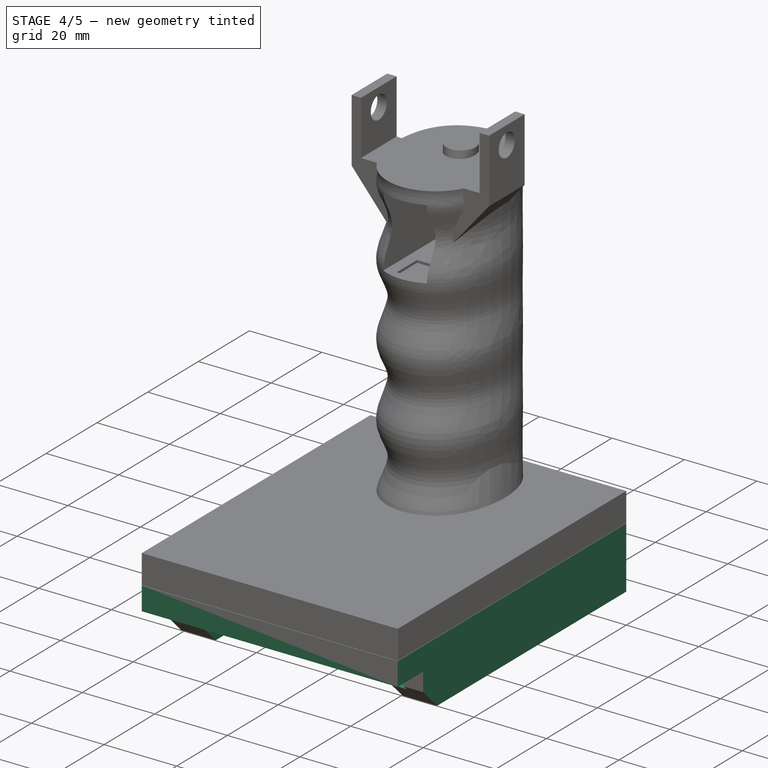
[diagram: stage 4 of 5 — iso view after this stage's code; geometry added in this stage tinted green]
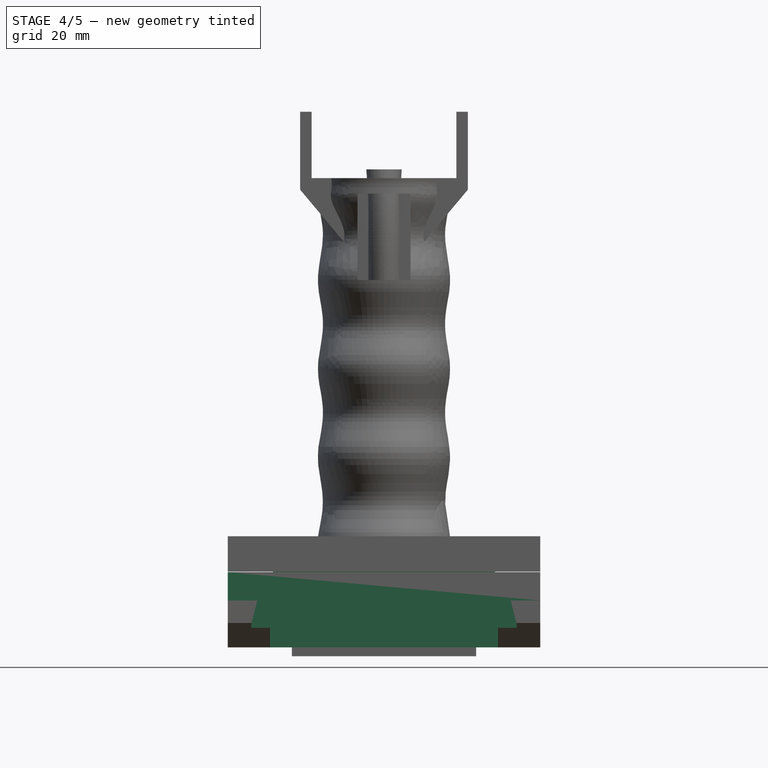
[diagram: stage 4 of 5 — front view after this stage's code; geometry added in this stage tinted green]
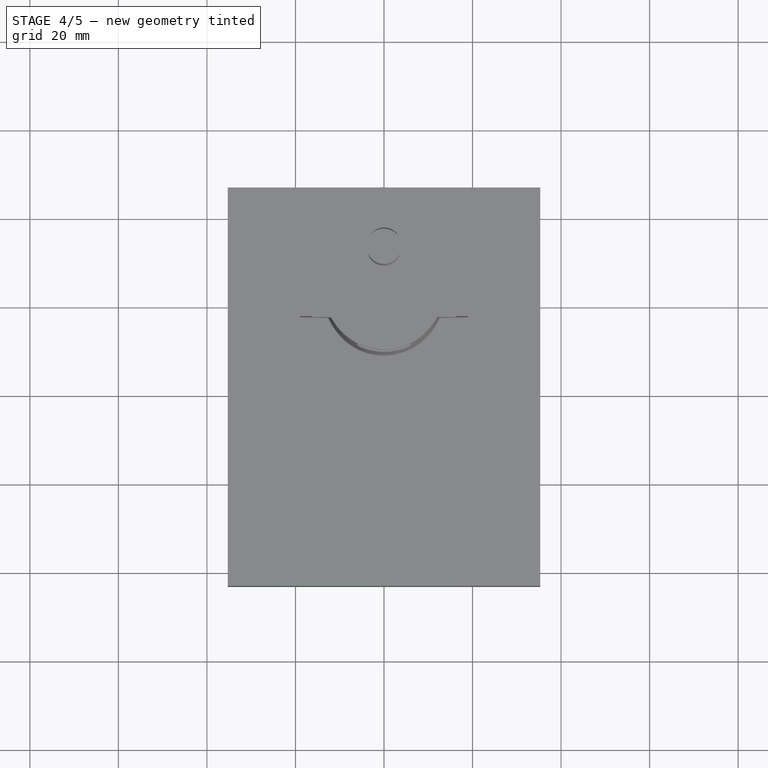
[diagram: stage 4 of 5 — top view after this stage's code; geometry added in this stage tinted green]
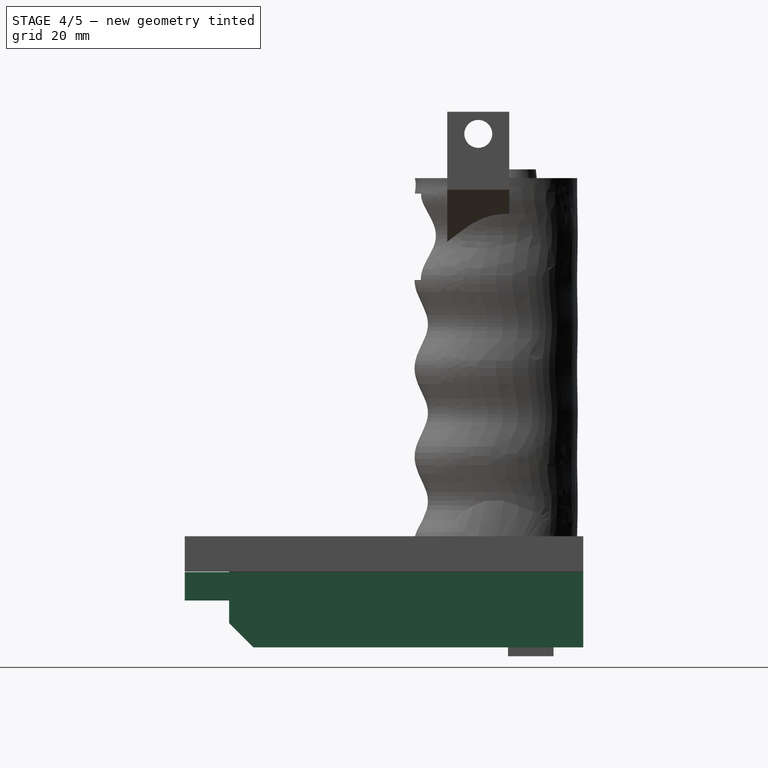
[diagram: stage 4 of 5 — right view after this stage's code; geometry added in this stage tinted green]
FEATURE [Part::Box] Box  label="main"
  AttacherType = Attacher::AttachEngine3D
  Height = 19
  Length = 70.6
  Placement = pos=(-35.3,-63.3,0) rot=(0,0,1;0rad)
  Width = 90
FEATURE [Sketcher::SketchObject] Sketch
  FullyConstrained = true
  Placement = pos=(0,0,0) rot=(1,0,0;1.5708rad)
  sketch-geometry (10):
    g0: LineSegment StartX=-25.75 StartY=0 StartZ=0 EndX=-25.75 EndY=6.4 EndZ=0
    g1: LineSegment StartX=-25.75 StartY=6.4 StartZ=0 EndX=-30 EndY=6.4 EndZ=0
    g2: LineSegment StartX=-30 StartY=6.4 StartZ=0 EndX=-30 EndY=7.3 EndZ=0
    g3: LineSegment StartX=-30 StartY=7.3 StartZ=0 EndX=-28.6 EndY=12.6 EndZ=0
    g4: LineSegment StartX=-28.6 StartY=12.6 StartZ=0 EndX=28.6 EndY=12.6 EndZ=0
    g5: LineSegment StartX=28.6 StartY=12.6 StartZ=0 EndX=30 EndY=7.3 EndZ=0
    g6: LineSegment StartX=30 StartY=7.3 StartZ=0 EndX=30 EndY=6.4 EndZ=0
    g7: LineSegment StartX=30 StartY=6.4 StartZ=0 EndX=25.75 EndY=6.4 EndZ=0
    g8: LineSegment StartX=25.75 StartY=6.4 StartZ=0 EndX=25.75 EndY=0 EndZ=0
    g9: LineSegment StartX=25.75 StartY=0 StartZ=0 EndX=-25.75 EndY=0 EndZ=0
  constraints (30):
    c: PointOnObject(g0,g-1)
    c: Coincident(g0,g1)
    c: Coincident(g1,g2)
    c: Vertical(g2)
    c: Coincident(g2,g3)
    c: Coincident(g3,g4)
    c: Horizontal(g4)
    c: Coincident(g4,g5)
    c: Coincident(g5,g6)
    c: Coincident(g6,g7)
    c: Horizontal(g7)
    c: Coincident(g7,g8)
    c: Vertical(g8)
    c: Coincident(g8,g9)
    c: Coincident(g9,g0)
    c: Horizontal(g9)
    c: Perpendicular(g9,g0)
    c: Perpendicular(g7,g6)
    c: Perpendicular(g1,g2)
    c: DistanceX(g9,g9) = 51.5
    c: DistanceX(g1,g1) = 4.25
    c: DistanceY(g6,g6) = 0.9
    c: Equal(g2,g6)
    c: DistanceY(g7,g4) = 6.2
    c: DistanceY(g0,g7) = 0
    c: Equal(g1,g7)
    c: DistanceY(g0,g0) = 6.4
    c: DistanceX(g3,g4) = 57.2
    c: Equal(g3,g5)
    c: DistanceX(g0,g-1) = 25.75
FEATURE [PartDesign::Pad] Pad
  Direction = (0,-1,2e-16)
  Length = 63
  Length2 = 10
  Placement = pos=(0,0,0) rot=(1,0,0;1.5708rad)
  Profile = -> Sketch
  ReferenceAxis = -> Sketch [N_Axis]
  Type = 0
FEATURE [PartDesign::Body] Body  label="battery"
  Group = -> [Sketch,Pad]
  Origin = -> Origin
  Placement = pos=(0,9.7,0) rot=(0,0,1;0rad)
  Tip = -> Pad
FEATURE [Sketcher::SketchObject] Sketch001
  FullyConstrained = false
  Placement = pos=(0,0,0) rot=(0.57735,0.57735,0.57735;2.0944rad)
  sketch-geometry (7):
    g0: LineSegment StartX=-50.0878 StartY=11.0753 StartZ=0 EndX=-48.8878 EndY=16.0321 EndZ=0
    g1: LineSegment StartX=-48.8878 StartY=16.0321 StartZ=0 EndX=-37.5878 EndY=11.0753 EndZ=0
    g2: LineSegment StartX=-37.5878 StartY=11.0753 StartZ=0 EndX=-33.5045 EndY=16.7609 EndZ=0
    g3: LineSegment StartX=-33.5045 StartY=16.7609 StartZ=0 EndX=-24.0878 EndY=11.0753 EndZ=0
    g4: LineSegment StartX=-24.0878 StartY=11.0753 StartZ=0 EndX=-24.0878 EndY=8.07529 EndZ=0
    g5: LineSegment StartX=-24.0878 StartY=8.07529 StartZ=0 EndX=-50.0878 EndY=8.07529 EndZ=0
    g6: LineSegment StartX=-50.0878 StartY=8.07529 StartZ=0 EndX=-50.0878 EndY=11.0753 EndZ=0
  constraints (19):
    c: Coincident(g0,g1)
    c: Coincident(g1,g2)
    c: Coincident(g2,g3)
    c: Coincident(g3,g4)
    c: Coincident(g4,g5)
    c: Horizontal(g5)
    c: Coincident(g5,g6)
    c: Coincident(g6,g0)
    c: Perpendicular(g5,g6)
    c: Perpendicular(g5,g4)
    c: DistanceY(g1,g0) = 0
    c: DistanceY(g1,g3) = 0
    c: DistanceX(g5,g4) = 26
    c: Distance(g2,g3) = 11
    c: DistanceX(g1,g3) = 13.5
    c: DistanceX(g1,g1) = 11.3
    c: Distance(g0) = 5.1
    c: Distance(g2) = 7
    c: DistanceY(g6,g6) = 3
FEATURE [PartDesign::Pad] Pad001
  Direction = (1,0,0)
  Length = 22.2
  Length2 = 10
  Placement = pos=(0,0,0) rot=(0.57735,0.57735,0.57735;2.0944rad)
  Profile = -> Sketch001
  ReferenceAxis = -> Sketch001 [N_Axis]
  Type = 0
FEATURE [Part::MultiFuse] Fusion001  label="battery001"
  Shapes = -> [Chamfer,Body001,Body]
FEATURE [Part::Cut] Cut
  Base = -> Box
  Tool = -> Fusion001
FEATURE [PartDesign::Body] Body002
  Group = -> [Sketch002,Pad002]
  Origin = -> Origin002
  Placement = pos=(0,26.7,1) rot=(0,0,1;0rad)
  Tip = -> Pad002
FEATURE [Part::Fuse] Fusion002
  Base = -> Cut
  Tool = -> Body002
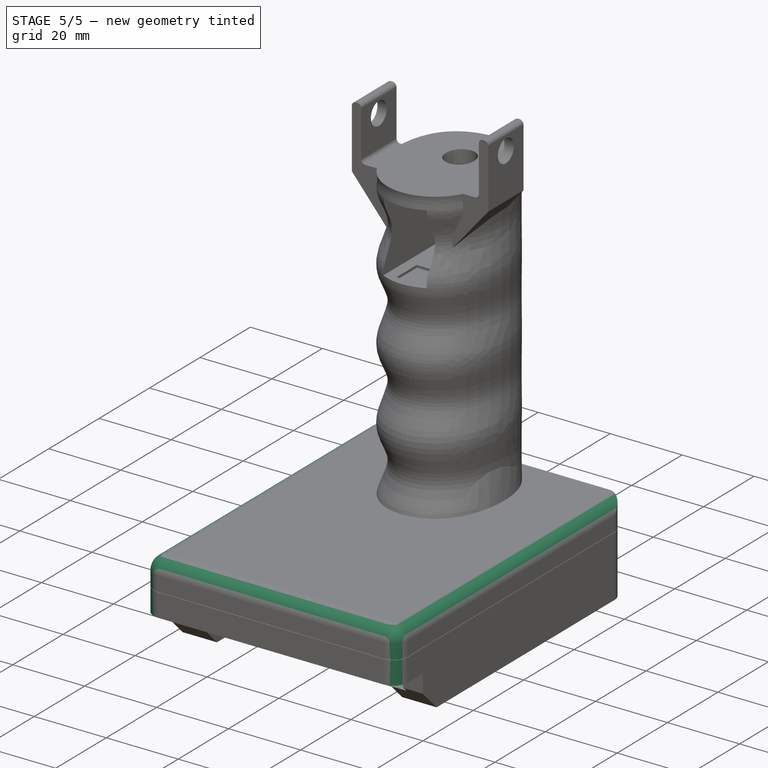
[diagram: stage 5 of 5 — iso view after this stage's code; geometry added in this stage tinted green]
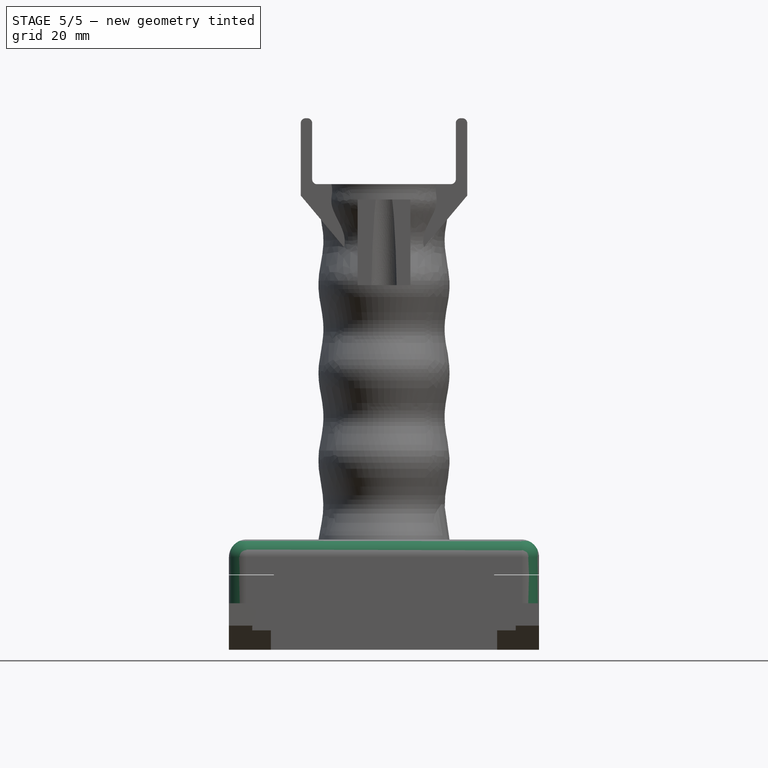
[diagram: stage 5 of 5 — front view after this stage's code; geometry added in this stage tinted green]
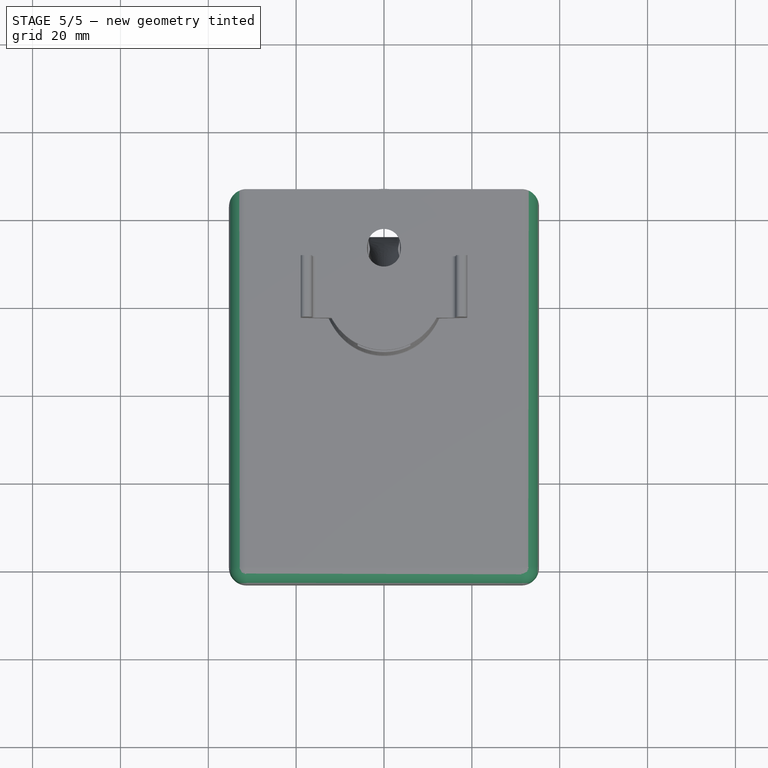
[diagram: stage 5 of 5 — top view after this stage's code; geometry added in this stage tinted green]
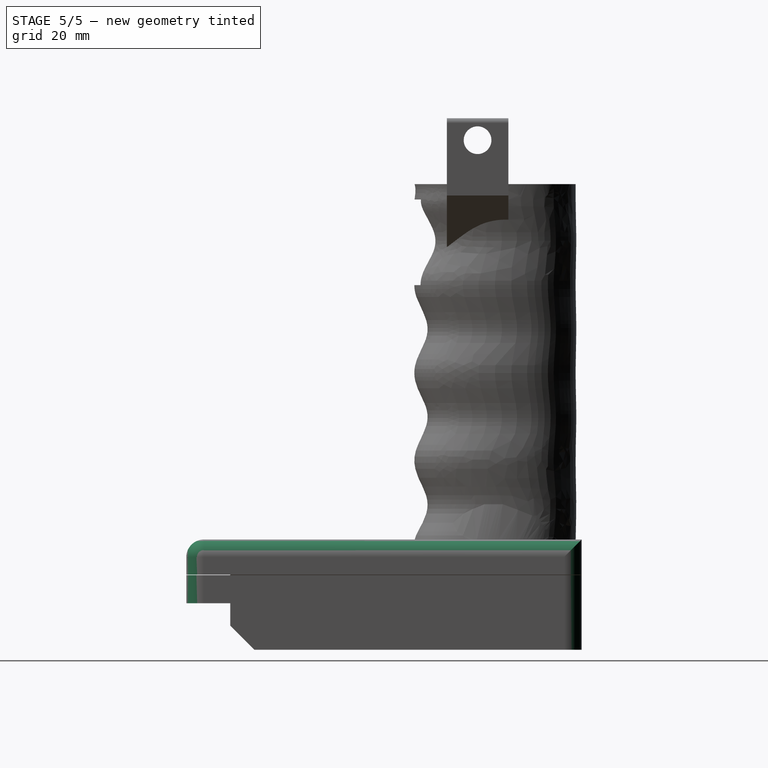
[diagram: stage 5 of 5 — right view after this stage's code; geometry added in this stage tinted green]
FEATURE [PartDesign::Body] Body005
  Group = -> [Sketch009,Pad004]
  Origin = -> Origin005
  Tip = -> Pad004
FEATURE [Part::Cut] Cut001
  Base = -> Fusion002
  Tool = -> Body005
FEATURE [PartDesign::Body] Body006  label="throughHole"
  Group = -> [Sketch010,Sketch012,Sketch032,Sketch033,AdditiveLoft]
  Origin = -> Origin006
  Tip = -> AdditiveLoft
FEATURE [Part::Cut] Cut002
  Base = -> Cut001
  Tool = -> Body006
FEATURE [Part::Fillet] Fillet  label="main_bottom"
  Base = -> Cut002
  Edges = 4 edges r=4: [Edge9,Edge12,Edge26,Edge35]
FEATURE [Part::Fillet] Fillet002  label="main_bottom001"
  Base = -> Cut002
  Edges = 4 edges r=4: [Edge9,Edge12,Edge26,Edge35]
FEATURE [Part::Fillet] Fillet001
  Base = -> Cut008
  Edges = 7 edges r=4: [Edge46,Edge48,Edge49,Edge107,Edge108,Edge111,Edge113]
FEATURE [Part::Cut] Cut005
  Base = -> Fillet001
  Tool = -> Fillet002
FEATURE [Part::Fillet] Fillet003
  Base = -> Cut005
  Edges = 6 edges r=1.1: [Edge145,Edge147,Edge148,Edge150,Edge151,Edge153]
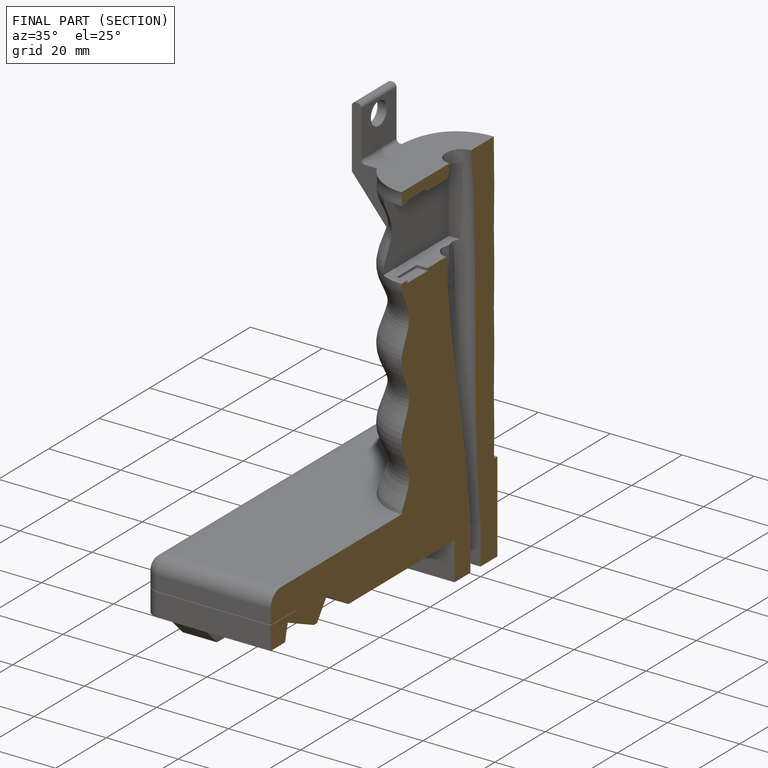
[diagram: finished part — half-section view (interior)]
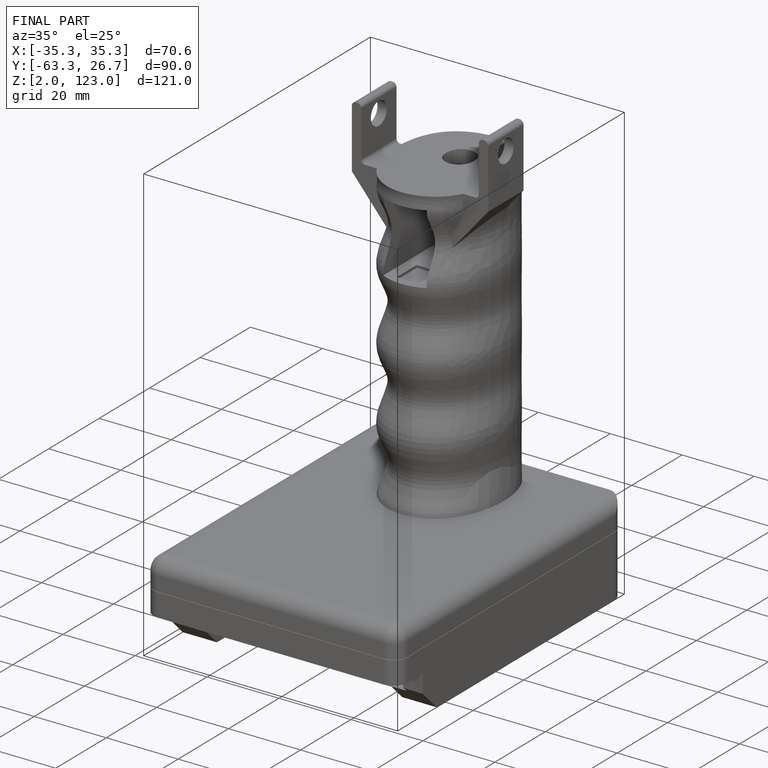
[diagram: finished part — iso view with bounding-box wireframe]
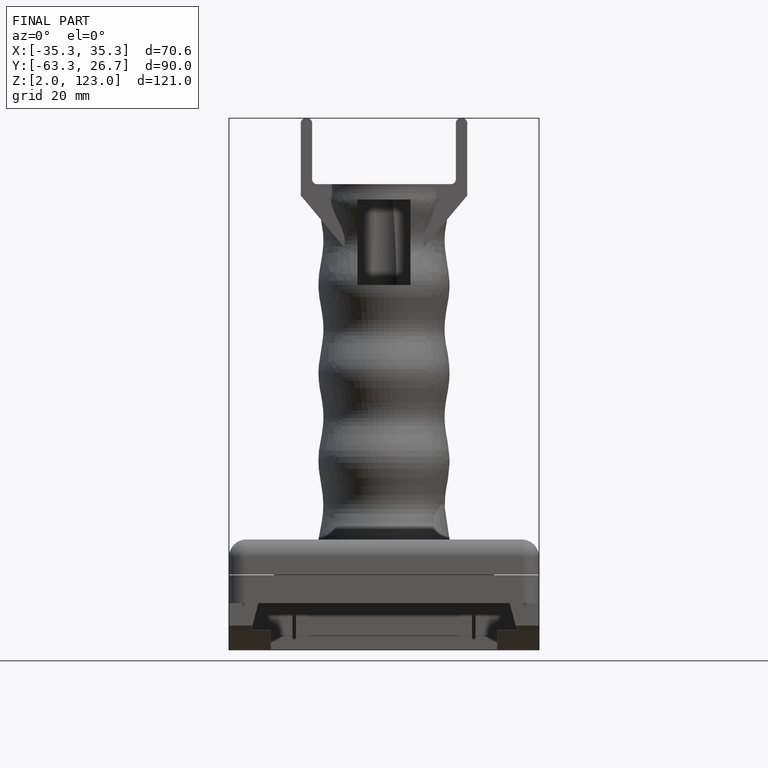
[diagram: finished part — front view with bounding-box wireframe]
